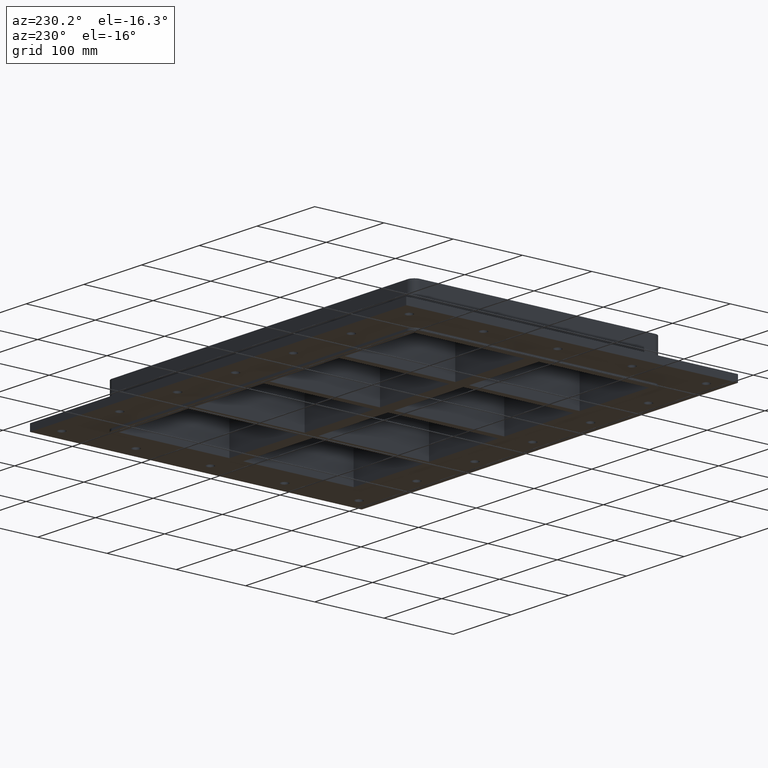
[diagram: clean part render]
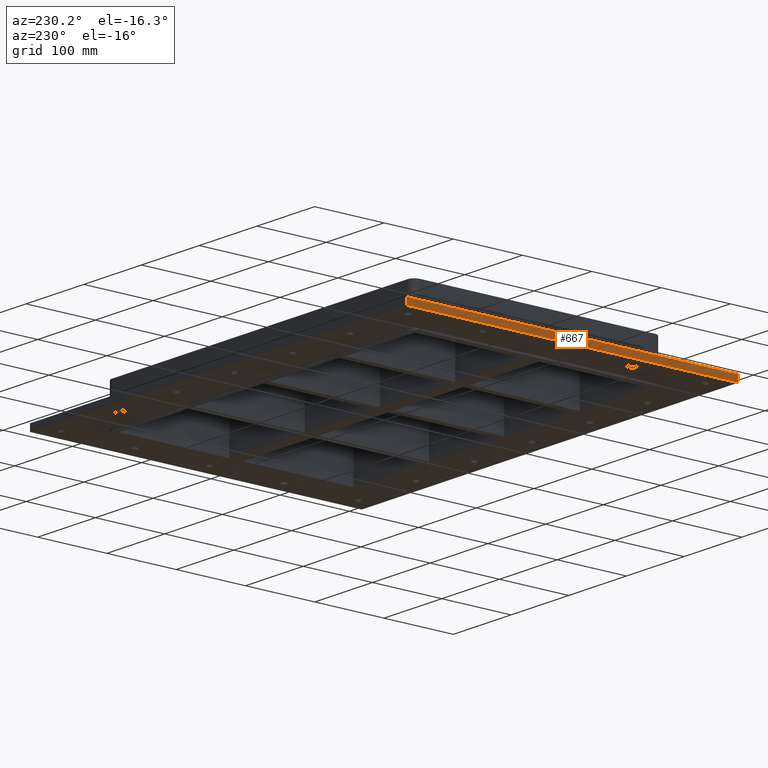
[diagram: same view with one face highlighted and labeled with its STEP entity id]
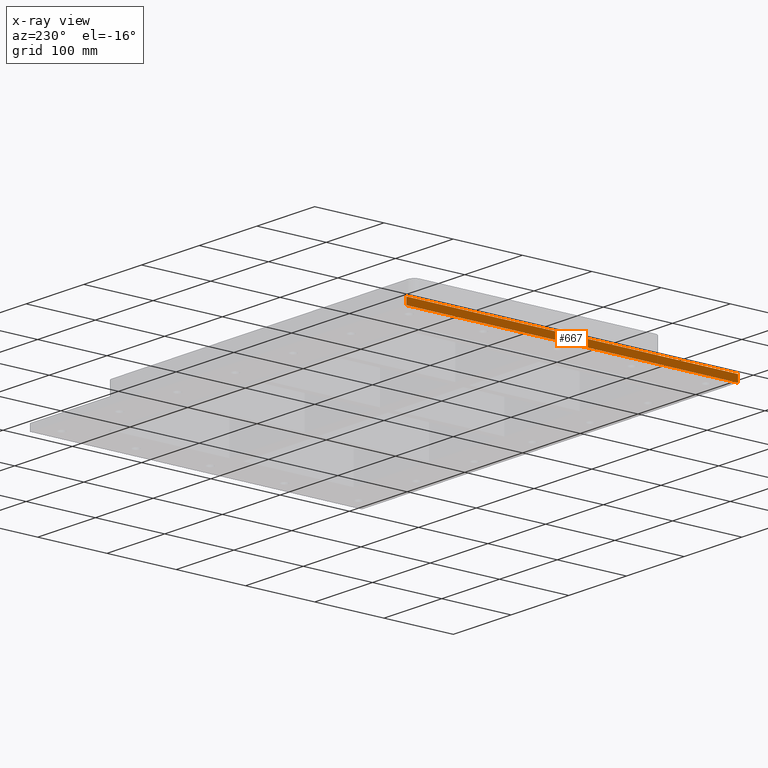
[diagram: x-ray of the same camera — body ghosted, the highlighted face saturated]
A machine part, auxiliary view. The second image highlights one B-rep face of the part: STEP entity #667.
The next image is the same camera in x-ray: the body ghosted, the highlighted face saturated — about 0% of this face is hidden behind the body in this view.
In plain terms, the highlighted planar face has unit normal (-1, 0, 0).
Its self-contained STEP definition (entity closure, byte-faithful):
#628=CARTESIAN_POINT('',(-326.00000000000011,239.5,-27.0));
#629=DIRECTION('',(-1.0,0.0,0.0));
#630=DIRECTION('',(0.0,-1.0,0.0));
#631=AXIS2_PLACEMENT_3D('',#628,#629,#630);
#632=PLANE('',#631);
#633=CARTESIAN_POINT('',(-326.0,-239.50000000000006,-27.0));
#634=VERTEX_POINT('',#633);
#635=CARTESIAN_POINT('',(-326.00000000000011,239.5,-27.0));
#636=VERTEX_POINT('',#635);
#637=CARTESIAN_POINT('',(-326.0,-239.50000000000006,-27.0));
#638=DIRECTION('',(0.0,1.0,0.0));
#639=VECTOR('',#638,479.00000000000006);
#640=LINE('',#637,#639);
#641=EDGE_CURVE('',#634,#636,#640,.T.);
#642=ORIENTED_EDGE('',*,*,#641,.F.);
#643=CARTESIAN_POINT('',(-326.00000000000011,-239.50000000000006,-17.0));
#644=VERTEX_POINT('',#643);
#645=CARTESIAN_POINT('',(-326.0,-239.50000000000006,-27.0));
#646=DIRECTION('',(0.0,0.0,1.0));
#647=VECTOR('',#646,10.0);
#648=LINE('',#645,#647);
#649=EDGE_CURVE('',#634,#644,#648,.T.);
#650=ORIENTED_EDGE('',*,*,#649,.T.);
#651=CARTESIAN_POINT('',(-326.00000000000011,239.49999999999994,-17.0));
#652=VERTEX_POINT('',#651);
#653=CARTESIAN_POINT('',(-326.00000000000006,239.5,-17.0));
#654=DIRECTION('',(0.0,-1.0,0.0));
#655=VECTOR('',#654,479.00000000000006);
#656=LINE('',#653,#655);
#657=EDGE_CURVE('',#652,#644,#656,.T.);
#658=ORIENTED_EDGE('',*,*,#657,.F.);
#659=CARTESIAN_POINT('',(-326.00000000000011,239.5,-27.0));
#660=DIRECTION('',(0.0,0.0,1.0));
#661=VECTOR('',#660,10.0);
#662=LINE('',#659,#661);
#663=EDGE_CURVE('',#636,#652,#662,.T.);
#664=ORIENTED_EDGE('',*,*,#663,.F.);
#665=EDGE_LOOP('',(#642,#650,#658,#664));
#666=FACE_OUTER_BOUND('',#665,.T.);
#667=ADVANCED_FACE('',(#666),#632,.T.);